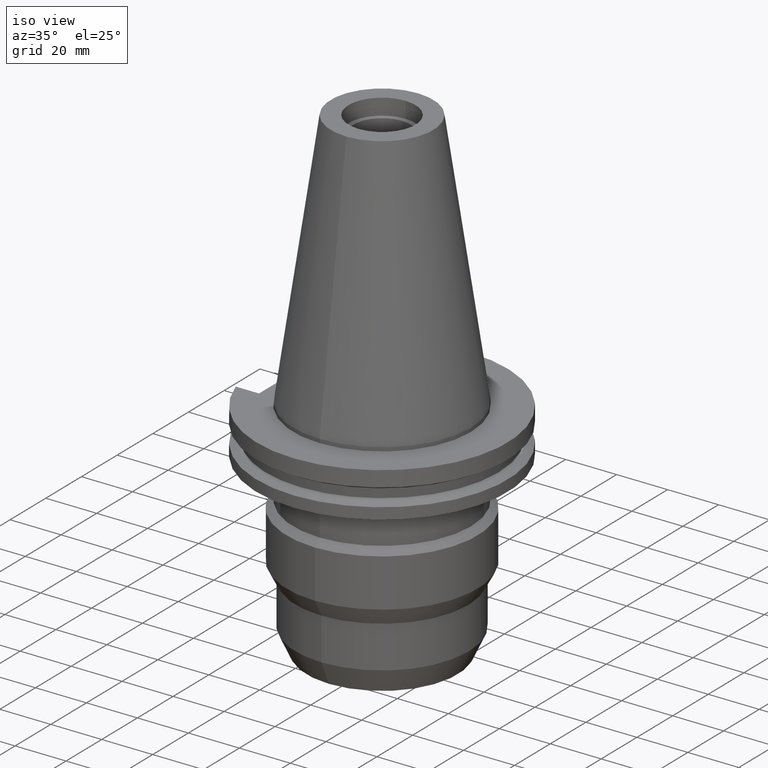
[diagram: clean part render]
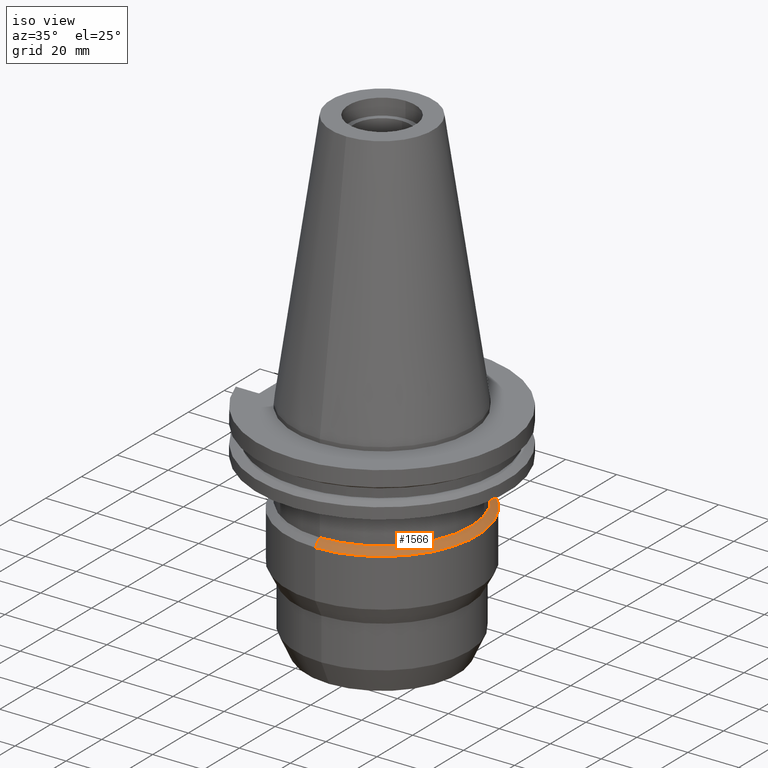
[diagram: same view with one face highlighted and labeled with its STEP entity id]
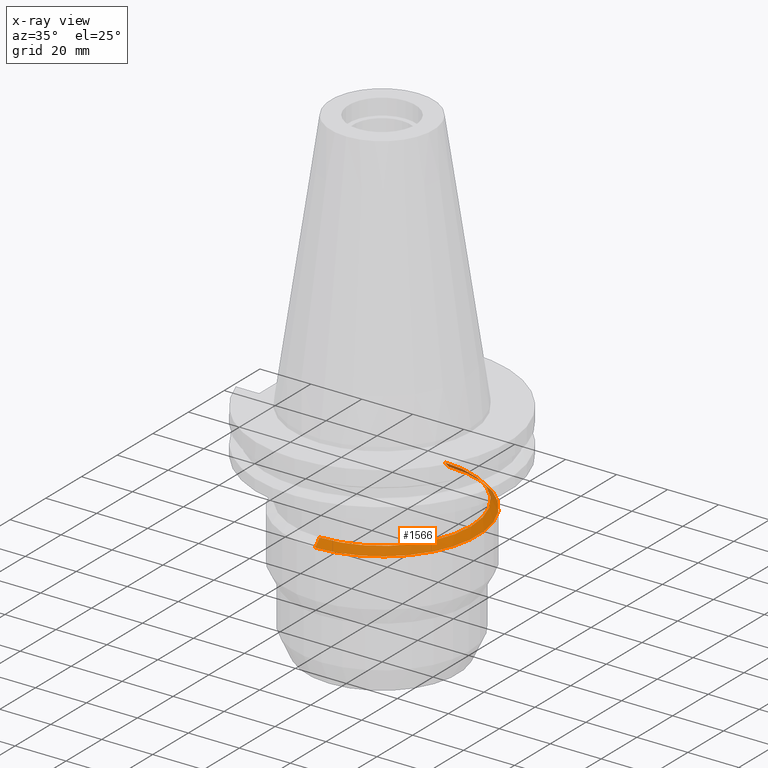
[diagram: x-ray of the same camera — body ghosted, the highlighted face saturated]
A machine part, iso view. The second image highlights one B-rep face of the part: STEP entity #1566.
The next image is the same camera in x-ray: the body ghosted, the highlighted face saturated — about 6% of this face is hidden behind the body in this view.
In plain terms, the highlighted conical surface has half-angle 45 deg.
Its self-contained STEP definition (entity closure, byte-faithful):
#558=DIRECTION('',(0.E0,7.071067811865E-1,-7.071067811866E-1));
#559=VECTOR('',#558,3.641599923111E0);
#560=CARTESIAN_POINT('',(0.E0,3.4925E1,-3.5E1));
#561=LINE('',#560,#559);
#565=CARTESIAN_POINT('',(0.E0,0.E0,-3.7575E1));
#566=DIRECTION('',(0.E0,0.E0,-1.E0));
#567=DIRECTION('',(0.E0,1.E0,0.E0));
#568=AXIS2_PLACEMENT_3D('',#565,#566,#567);
#573=CARTESIAN_POINT('',(0.E0,0.E0,-3.5E1));
#574=DIRECTION('',(0.E0,0.E0,1.E0));
#575=DIRECTION('',(0.E0,-1.E0,0.E0));
#576=AXIS2_PLACEMENT_3D('',#573,#574,#575);
#589=DIRECTION('',(0.E0,-7.071067811865E-1,-7.071067811866E-1));
#590=VECTOR('',#589,3.641599923111E0);
#591=CARTESIAN_POINT('',(0.E0,-3.4925E1,-3.5E1));
#592=LINE('',#591,#590);
#1050=CARTESIAN_POINT('',(0.E0,3.4925E1,-3.5E1));
#1051=VERTEX_POINT('',#1050);
#1052=CARTESIAN_POINT('',(0.E0,-3.4925E1,-3.5E1));
#1053=VERTEX_POINT('',#1052);
#1054=CARTESIAN_POINT('',(0.E0,3.75E1,-3.7575E1));
#1055=VERTEX_POINT('',#1054);
#1056=CARTESIAN_POINT('',(0.E0,-3.75E1,-3.7575E1));
#1057=VERTEX_POINT('',#1056);
#1552=CARTESIAN_POINT('',(0.E0,0.E0,-3.62875E1));
#1553=DIRECTION('',(0.E0,0.E0,-1.E0));
#1554=DIRECTION('',(0.E0,-1.E0,0.E0));
#1555=AXIS2_PLACEMENT_3D('',#1552,#1553,#1554);
#1556=CONICAL_SURFACE('',#1555,3.62125E1,4.5E1);
#1558=ORIENTED_EDGE('',*,*,#1557,.T.);
#1560=ORIENTED_EDGE('',*,*,#1559,.T.);
#1562=ORIENTED_EDGE('',*,*,#1561,.F.);
#1563=ORIENTED_EDGE('',*,*,#1545,.T.);
#1564=EDGE_LOOP('',(#1558,#1560,#1562,#1563));
#1565=FACE_OUTER_BOUND('',#1564,.F.);
#569=CIRCLE('',#568,3.75E1);
#577=CIRCLE('',#576,3.4925E1);
#1545=EDGE_CURVE('',#1053,#1051,#577,.T.);
#1557=EDGE_CURVE('',#1051,#1055,#561,.T.);
#1559=EDGE_CURVE('',#1055,#1057,#569,.T.);
#1561=EDGE_CURVE('',#1053,#1057,#592,.T.);
#1566=ADVANCED_FACE('',(#1565),#1556,.T.);